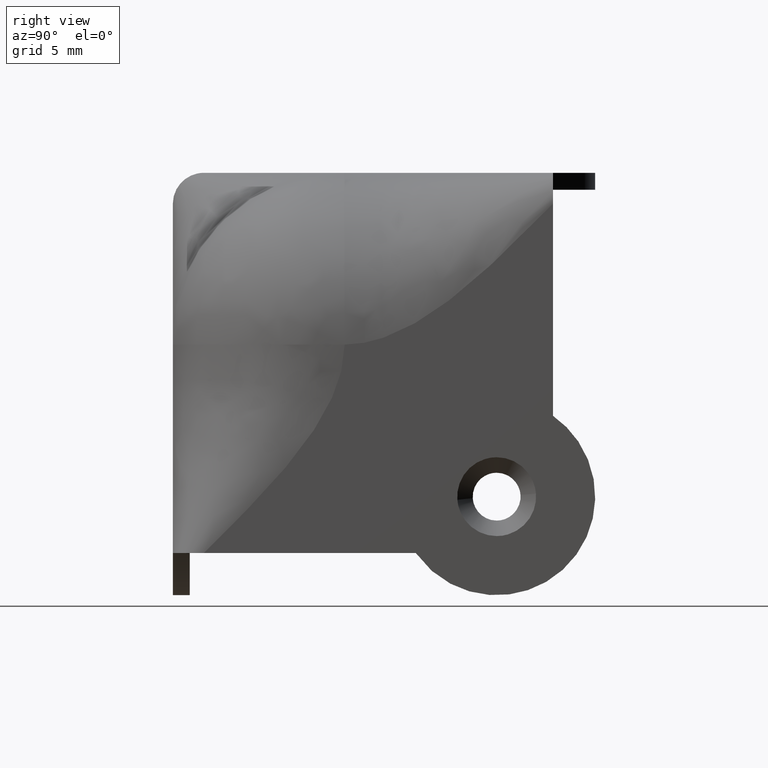
[diagram: clean part render]
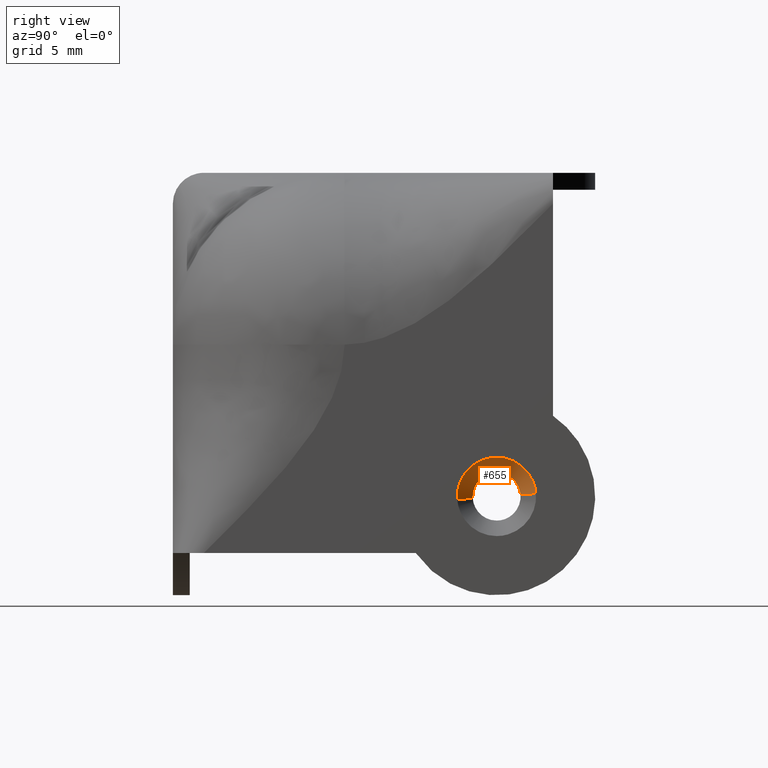
[diagram: same view with one face highlighted and labeled with its STEP entity id]
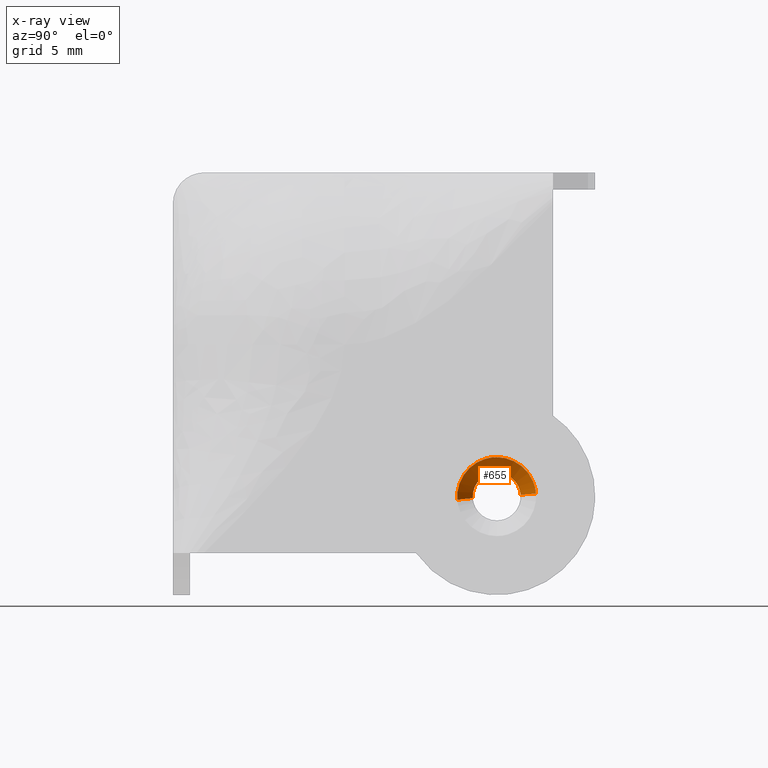
[diagram: x-ray of the same camera — body ghosted, the highlighted face saturated]
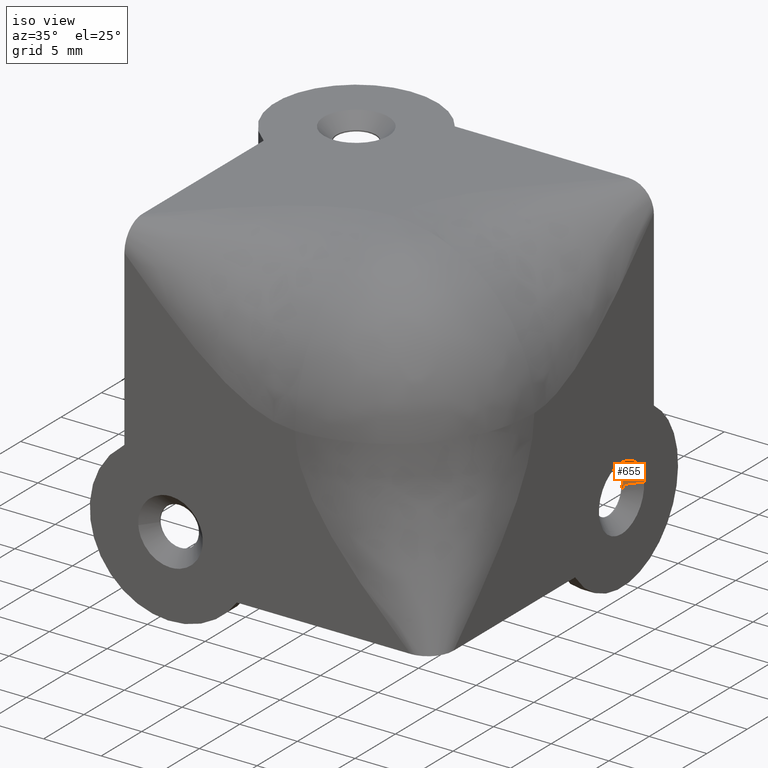
[diagram: same view with one face highlighted and labeled with its STEP entity id]
A machine part, right view. The second image highlights one B-rep face of the part: STEP entity #655.
The next image is the same camera in x-ray: the body ghosted, the highlighted face saturated — about 0% of this face is hidden behind the body in this view.
A second angle (iso view) of the same face is appended — the face is thin or edge-on in the first view.
In plain terms, the highlighted face is a freeform B-spline surface patch.
Its self-contained STEP definition (entity closure, byte-faithful):
#460=CARTESIAN_POINT('',(-1.099999999999831,21.303170833869039,6.896217626895117));
#461=VERTEX_POINT('',#460);
#505=CARTESIAN_POINT('',(-1.099999999971250,24.694759467357819,7.133380462957572));
#506=VERTEX_POINT('',#505);
#522=CARTESIAN_POINT('',(-1.100000000000000,23.0,8.699999999999999));
#523=VERTEX_POINT('',#522);
#524=CARTESIAN_POINT('',(-1.100000000000000,23.0,8.699999999999999));
#525=CARTESIAN_POINT('',(-1.100000000000000,24.571463835413454,8.699999999999999));
#526=CARTESIAN_POINT('',(-1.099999999971251,24.694759467357816,7.133380462957573));
#534=(BOUNDED_CURVE()B_SPLINE_CURVE(2,(#524,#525,#526),.UNSPECIFIED.,.F.,.U.)B_SPLINE_CURVE_WITH_KNOTS((3,3),(0.0,0.236331300588670),.UNSPECIFIED.)CURVE()GEOMETRIC_REPRESENTATION_ITEM()RATIONAL_B_SPLINE_CURVE((1.0,0.723120658656860,0.969723356079788))REPRESENTATION_ITEM(''));
#535=EDGE_CURVE('',#523,#506,#534,.T.);
#537=CARTESIAN_POINT('',(-1.099999999999831,21.303170833869039,6.896217626895117));
#538=CARTESIAN_POINT('',(-1.100000000000000,21.300000000000004,6.948060374646612));
#539=CARTESIAN_POINT('',(-1.100000000000000,21.300000000000001,7.0));
#540=CARTESIAN_POINT('',(-1.100000000000000,21.300000000000008,8.699999999999999));
#541=CARTESIAN_POINT('',(-1.100000000000000,23.0,8.699999999999999));
#549=(BOUNDED_CURVE()B_SPLINE_CURVE(2,(#537,#538,#539,#540,#541),.UNSPECIFIED.,.F.,.U.)B_SPLINE_CURVE_WITH_KNOTS((3,2,3),(0.739332976895622,0.750000000000000,1.0),.UNSPECIFIED.)CURVE()GEOMETRIC_REPRESENTATION_ITEM()RATIONAL_B_SPLINE_CURVE((0.976072073078774,0.987502805071205,1.0,0.707106781186548,1.0))REPRESENTATION_ITEM(''));
#550=EDGE_CURVE('',#461,#523,#549,.T.);
#589=CARTESIAN_POINT('',(-1.127500000000000,24.667344240668651,7.131222837604821));
#590=CARTESIAN_POINT('',(-1.127500000000000,24.536121403063824,8.798567078273470));
#591=CARTESIAN_POINT('',(-1.127500000000000,22.868777162395180,8.667344240668648));
#592=CARTESIAN_POINT('',(-1.127500000000000,21.201432921726532,8.536121403063829));
#593=CARTESIAN_POINT('',(-1.127500000000000,21.332655759331349,6.868777162395179));
#594=CARTESIAN_POINT('',(0.028187500000000,25.819469141797359,7.221897033798796));
#595=CARTESIAN_POINT('',(0.028187500000000,25.597572107998559,10.041366175596156));
#596=CARTESIAN_POINT('',(0.028187500000000,22.778102966201200,9.819469141797361));
#597=CARTESIAN_POINT('',(0.028187500000000,19.958633824403851,9.597572107998564));
#598=CARTESIAN_POINT('',(0.028187500000000,20.180530858202641,6.778102966201204));
#606=(BOUNDED_SURFACE()B_SPLINE_SURFACE(2,1,((#589,#594),(#590,#595),(#591,#596),(#592,#597),(#593,#598)),.UNSPECIFIED.,.F.,.F.,.U.)B_SPLINE_SURFACE_WITH_KNOTS((3,2,3),(2,2),(0.0,4.685894477736235,9.371788955472470),(0.0,1.0),.UNSPECIFIED.)GEOMETRIC_REPRESENTATION_ITEM()RATIONAL_B_SPLINE_SURFACE(((1.0,1.0),(0.707106781186548,0.707106781186548),(1.0,1.0),(0.707106781186548,0.707106781186548),(1.0,1.0)))REPRESENTATION_ITEM('')SURFACE());
#607=ORIENTED_EDGE('',*,*,#535,.T.);
#608=CARTESIAN_POINT('',(4.741953E-013,25.791368534452950,7.219685468041634));
#609=VERTEX_POINT('',#608);
#610=CARTESIAN_POINT('',(-1.099999999971250,24.694759467357819,7.133380462957572));
#611=CARTESIAN_POINT('',(4.741953E-013,25.791368534452950,7.219685468041634));
#612=QUASI_UNIFORM_CURVE('',1,(#610,#611),.UNSPECIFIED.,.F.,.U.);
#613=EDGE_CURVE('',#506,#609,#612,.T.);
#614=ORIENTED_EDGE('',*,*,#613,.T.);
#615=CARTESIAN_POINT('',(-2.220446E-016,23.0,9.799999999999999));
#616=VERTEX_POINT('',#615);
#617=CARTESIAN_POINT('',(-2.220446E-016,23.0,9.799999999999999));
#618=CARTESIAN_POINT('',(-2.220446E-016,25.588293376636226,9.800000000000001));
#619=CARTESIAN_POINT('',(4.741953E-013,25.791368534452943,7.219685468041634));
#627=(BOUNDED_CURVE()B_SPLINE_CURVE(2,(#617,#618,#619),.UNSPECIFIED.,.F.,.U.)B_SPLINE_CURVE_WITH_KNOTS((3,3),(0.0,0.236331300632321),.UNSPECIFIED.)CURVE()GEOMETRIC_REPRESENTATION_ITEM()RATIONAL_B_SPLINE_CURVE((1.0,0.723120658605719,0.969723356170885))REPRESENTATION_ITEM(''));
#628=EDGE_CURVE('',#616,#609,#627,.T.);
#629=ORIENTED_EDGE('',*,*,#628,.F.);
#630=CARTESIAN_POINT('',(4.731684E-013,20.208631465547050,6.780314531958364));
#631=VERTEX_POINT('',#630);
#632=CARTESIAN_POINT('',(4.731684E-013,20.208631465547050,6.780314531958366));
#633=CARTESIAN_POINT('',(-2.220446E-016,20.199999999999999,6.889987700374877));
#634=CARTESIAN_POINT('',(-2.220446E-016,20.199999999999999,7.0));
#635=CARTESIAN_POINT('',(-2.220446E-016,20.200000000000003,9.800000000000001));
#636=CARTESIAN_POINT('',(-2.220446E-016,23.0,9.799999999999999));
#644=(BOUNDED_CURVE()B_SPLINE_CURVE(2,(#632,#633,#634,#635,#636),.UNSPECIFIED.,.F.,.U.)B_SPLINE_CURVE_WITH_KNOTS((3,2,3),(0.736331300632321,0.750000000000000,1.0),.UNSPECIFIED.)CURVE()GEOMETRIC_REPRESENTATION_ITEM()RATIONAL_B_SPLINE_CURVE((0.969723356170885,0.983986122580828,1.0,0.707106781186547,1.0))REPRESENTATION_ITEM(''));
#645=EDGE_CURVE('',#631,#616,#644,.T.);
#646=ORIENTED_EDGE('',*,*,#645,.F.);
#647=CARTESIAN_POINT('',(-1.099999999999831,21.303170833869039,6.896217626895117));
#648=CARTESIAN_POINT('',(4.731684E-013,20.208631465547050,6.780314531958364));
#649=QUASI_UNIFORM_CURVE('',1,(#647,#648),.UNSPECIFIED.,.F.,.U.);
#650=EDGE_CURVE('',#461,#631,#649,.T.);
#651=ORIENTED_EDGE('',*,*,#650,.F.);
#652=ORIENTED_EDGE('',*,*,#550,.T.);
#653=EDGE_LOOP('',(#607,#614,#629,#646,#651,#652));
#654=FACE_OUTER_BOUND('',#653,.T.);
#655=ADVANCED_FACE('',(#654),#606,.F.);